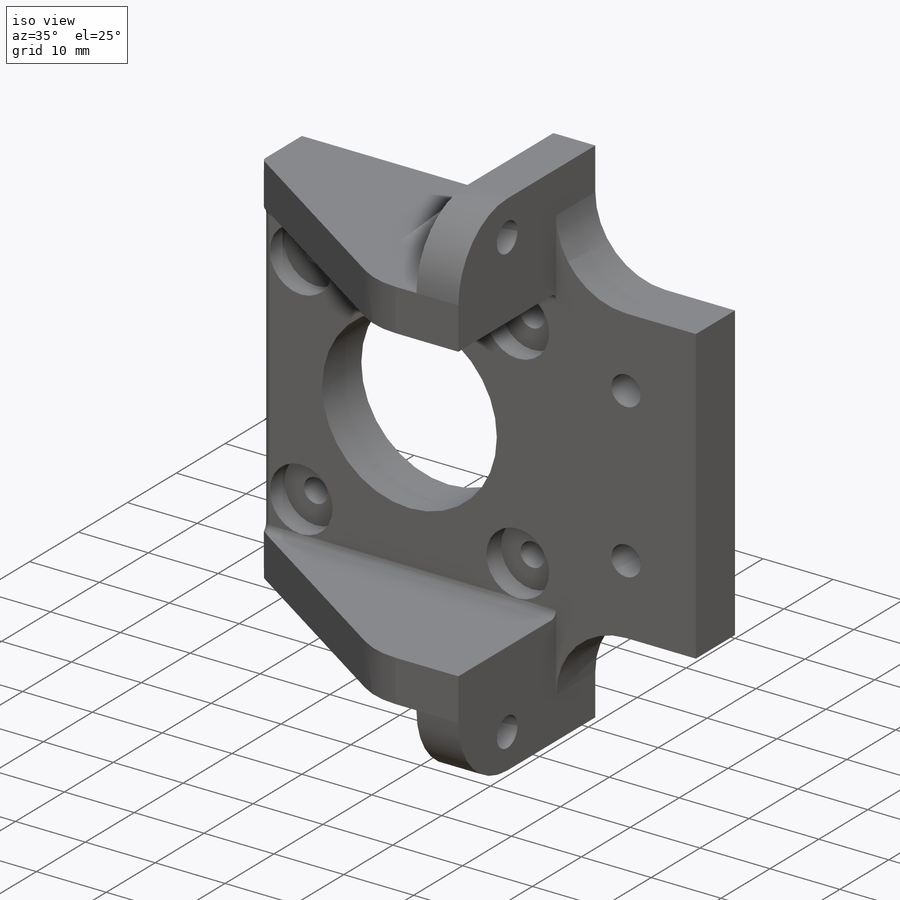
[diagram: iso view]
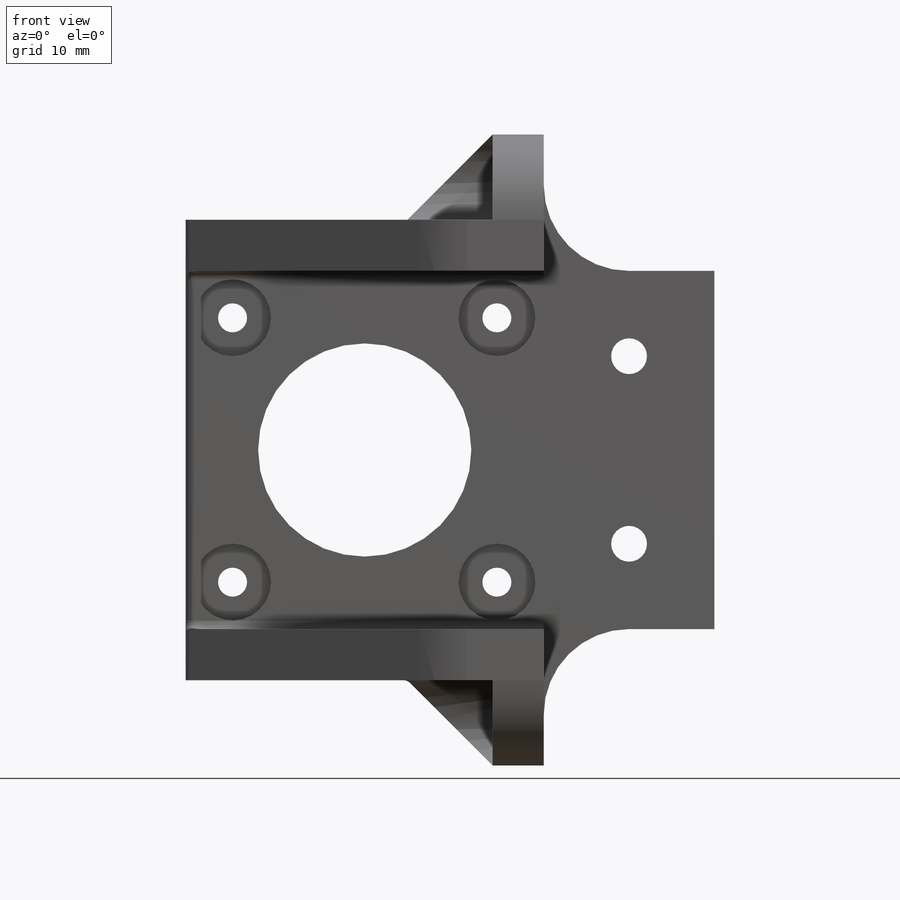
[diagram: front view]
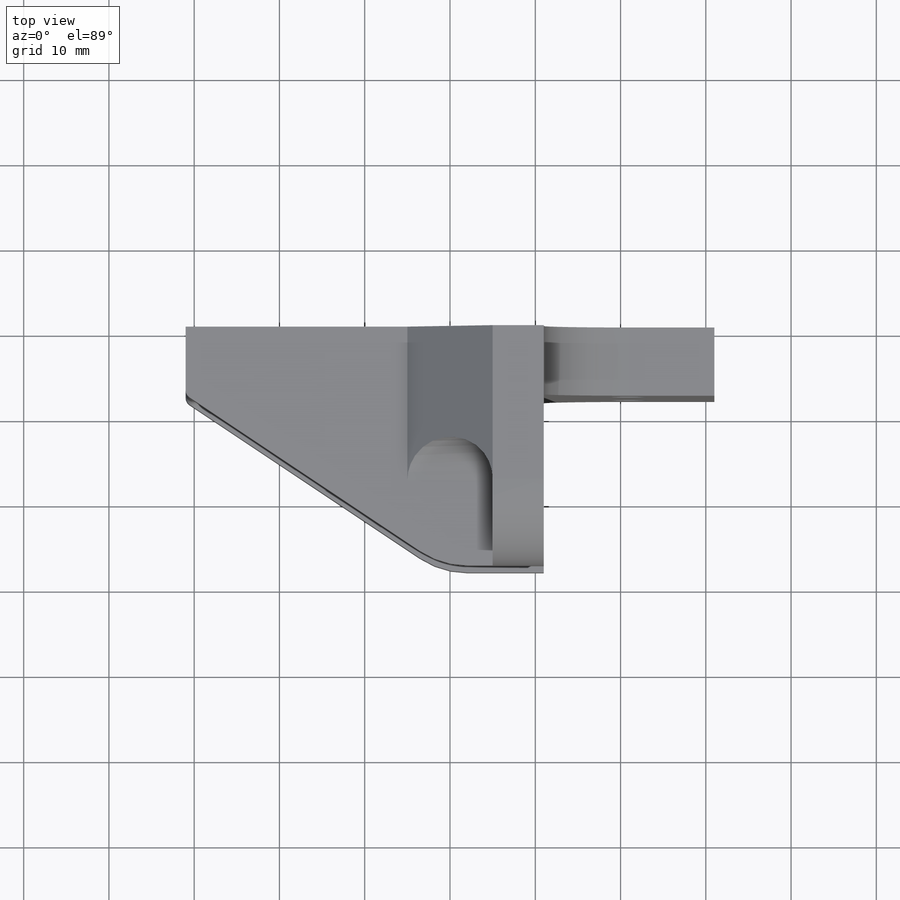
[diagram: top view]
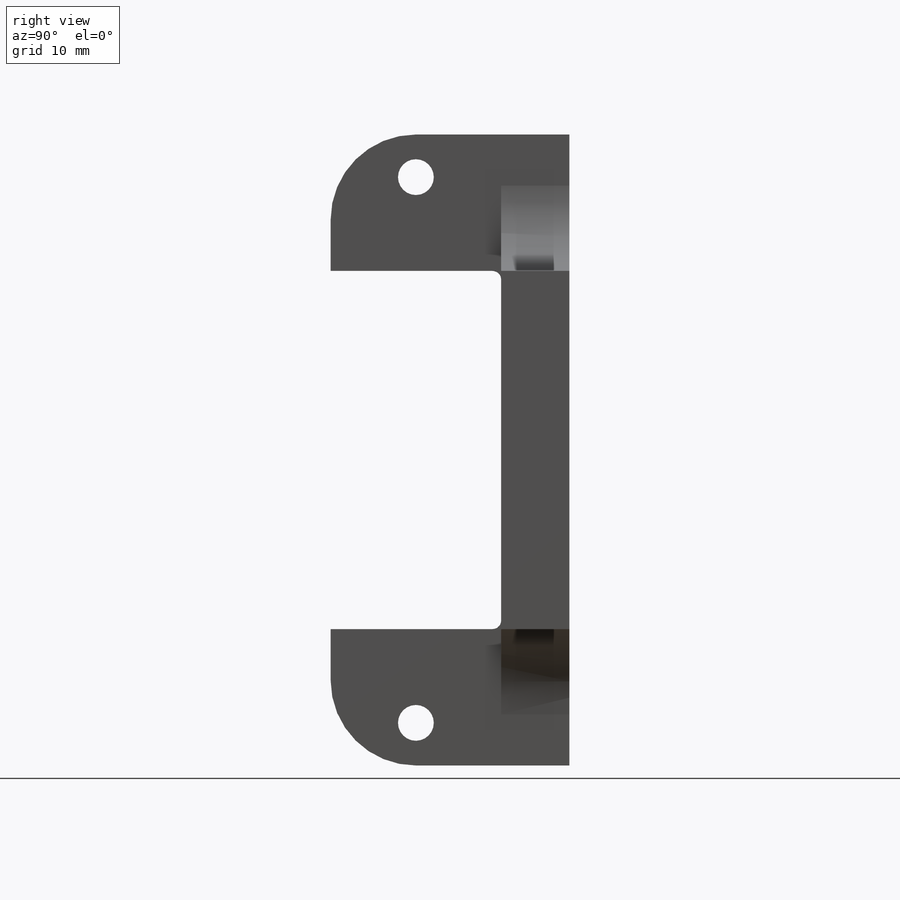
[diagram: right view]
SOLIDWORKS PART (.sldprt)
format: sldprt  version: not decoded by parser v0  size: 402,944 bytes
history: native  units: mm
features: sketch x8, fillet x6, extrude x4, cut_extrude x4, plane x3, chamfer x3, material x1 (+8 scaffold rows collapsed)
feature tree (37):
  scaffold x8  (default folders/planes/origin — collapsed)
  material  "Material <not specified>"
  plane  "Plan de face"
  plane  "Plan de dessus"
  plane  "Plan de droite"
  sketch  "Esquisse1"  dims[D1=42.0mm D2=62.0mm D3=31.0mm D4=21.0mm]
  extrude  "Boss.-Extru.1"  Depth=8mm
  sketch  "Esquisse2"  dims[D1=4.2mm D2=4.2mm D7=25.0mm D10=3.4mm D11=3.4mm D12=3.4mm D13=3.4mm D3=10.0mm D4=10.0mm D5=10.0mm D6=10.0mm D8=21.0mm D9=21.0mm D14=5.5mm D15=5.5mm D16=5.5mm D17=5.5mm D18=5.5mm D19=5.5mm D20=31.0mm D21=31.0mm]
  cut_extrude  "Enlèv. mat.-Extru.1"  [1 undecoded]
  sketch  "Esquisse4"  dims[D1=9.0mm]
  cut_extrude  "Enlèv. mat.-Extru.2"  Depth=3mm
  sketch  "Sketch2"  dims[D1=20.0mm D2=20.0mm D3=6.0mm D4=6.0mm]
  extrude  "Boss-Extrude1"  Depth=28mm
  chamfer  "Chamfer1"  Distance=30mm
  sketch  "Sketch3"  dims[D1=6.0mm]
  extrude  "Boss-Extrude2"  Depth=10mm
  chamfer  "Chamfer2"  Distance=10mm Angle=45deg
  fillet  "Fillet1"  Radius=1mm
  fillet  "Fillet2"  Radius=1mm
  sketch  "Sketch4"  dims[D1=6.0mm]
  extrude  "Boss-Extrude3"  Depth=10mm
  chamfer  "Chamfer3"  Distance=10mm Angle=45deg
  sketch  "Sketch5"  dims[D1=4.2mm D2=4.2mm D3=10.0mm D4=10.0mm D5=5.0mm D6=5.0mm]
  cut_extrude  "Cut-Extrude1"  [1 undecoded]
  sketch  "Sketch6"  dims[c1.D1=10.0mm c1.D2=10.0mm c1.D5=5.0mm c1.D7=5.0mm c2.D1=5.0mm c2.D3=5.0mm c2.D2=10.0mm c3.D3=~9.330127mm c3.D4=7.5mm c3.D6=~8.532305mm c3.D2=10.0mm]
  cut_extrude  "Cut-Extrude2"  Depth=6mm
  fillet  "Fillet4"  Radius=10mm
  fillet  "Fillet5"  Radius=1mm
  fillet  "Fillet6"  Radius=10mm
  fillet  "Fillet7"  Radius=1mm
decode coverage: 23 of 25 modeling features carry decoded parameters
note: ~ marks probable driven/reference dimensions
note: 2 parameter values undecoded
note: suppression state not decoded; provenance and decode notes live in map.json
